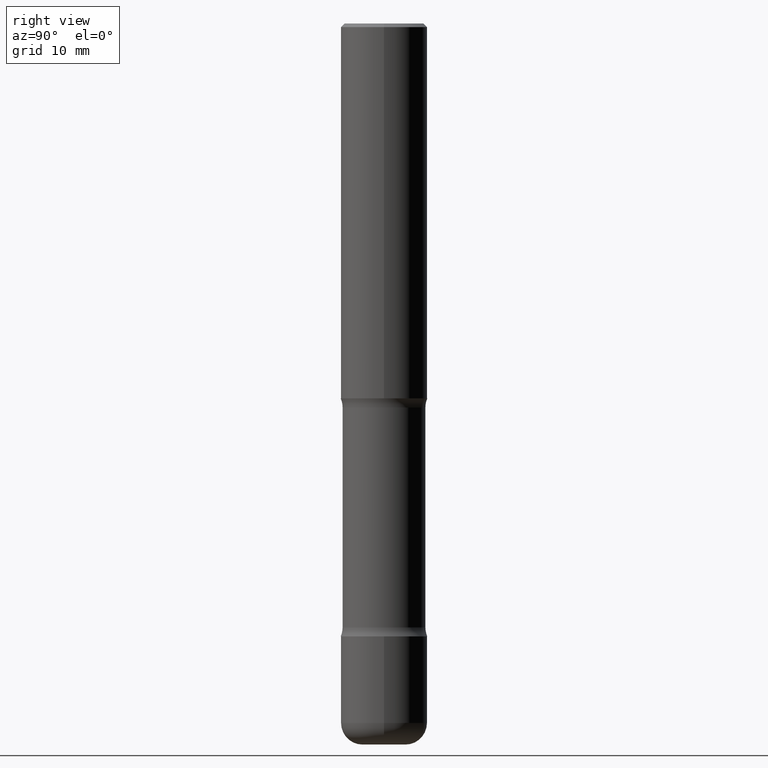
[diagram: clean part render]
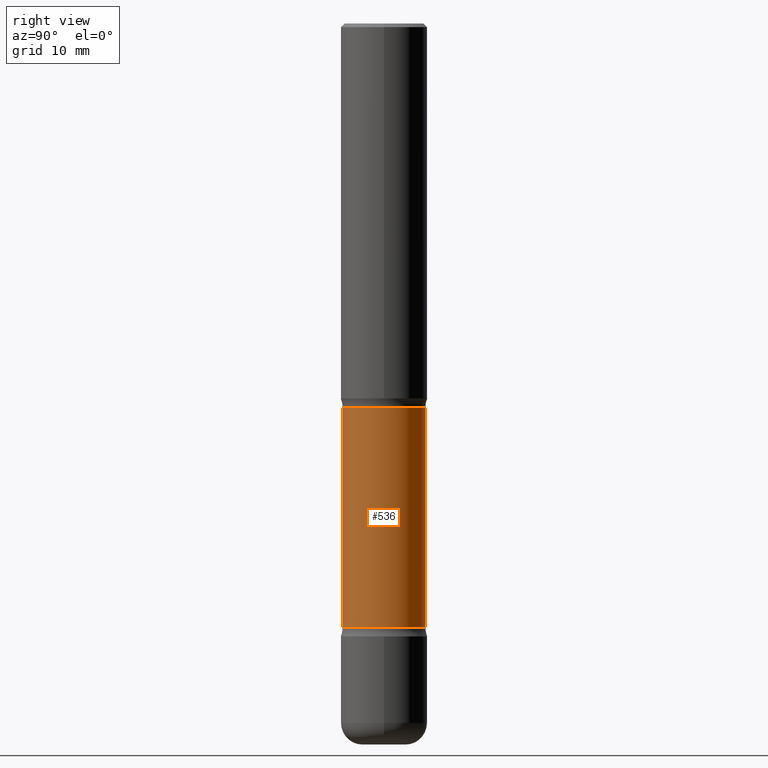
[diagram: same view with one face highlighted and labeled with its STEP entity id]
A machine part, right view. The second image highlights one B-rep face of the part: STEP entity #536.
In plain terms, the highlighted cylindrical surface (partial cylindrical patch) has radius 5.7404 mm, axis along (0, -0, -1).
Its self-contained STEP definition (entity closure, byte-faithful):
#4 = DIRECTION ( 'NONE',  ( 2.207249558311628199E-29, -3.832624860395576133E-15, -1.000000000000000000 ) ) ;
#6 = CIRCLE ( 'NONE', #261, 0.2259999999999994236 ) ;
#27 = EDGE_CURVE ( 'NONE', #496, #161, #419, .T. ) ;
#56 = DIRECTION ( 'NONE',  ( 2.207249558311628480E-29, -3.832624860395576133E-15, -1.000000000000000000 ) ) ;
#57 = CARTESIAN_POINT ( 'NONE',  ( -1.585461087284944814E-15, -0.2260000000000063070, -2.096656647682591856 ) ) ;
#69 = FACE_OUTER_BOUND ( 'NONE', #124, .T. ) ;
#73 = CARTESIAN_POINT ( 'NONE',  ( 9.487118402156788789E-29, -1.394744139485432957E-14, -3.937000000000000277 ) ) ;
#91 = CIRCLE ( 'NONE', #168, 0.2260000000000000342 ) ;
#99 = LINE ( 'NONE', #179, #500 ) ;
#109 = DIRECTION ( 'NONE',  ( 6.982962677686265133E-15, 1.000000000000000000, -4.835129192326128634E-15 ) ) ;
#124 = EDGE_LOOP ( 'NONE', ( #544, #411, #456, #186 ) ) ;
#134 = EDGE_CURVE ( 'NONE', #174, #476, #99, .T. ) ;
#161 = VERTEX_POINT ( 'NONE', #432 ) ;
#168 = AXIS2_PLACEMENT_3D ( 'NONE', #418, #493, #109 ) ;
#174 = VERTEX_POINT ( 'NONE', #57 ) ;
#179 = CARTESIAN_POINT ( 'NONE',  ( -1.550472547496269144E-15, -0.2260000000000136622, -3.936999999999998945 ) ) ;
#184 = DIRECTION ( 'NONE',  ( 2.207249558311628199E-29, -3.832624860395576133E-15, -1.000000000000000000 ) ) ;
#186 = ORIENTED_EDGE ( 'NONE', *, *, #27, .F. ) ;
#192 = EDGE_CURVE ( 'NONE', #496, #174, #6, .T. ) ;
#260 = EDGE_CURVE ( 'NONE', #161, #476, #91, .T. ) ;
#261 = AXIS2_PLACEMENT_3D ( 'NONE', #528, #56, #526 ) ;
#275 = DIRECTION ( 'NONE',  ( 6.982962677686265922E-15, 1.000000000000000000, -4.835129192326135734E-15 ) ) ;
#278 = DIRECTION ( 'NONE',  ( 2.207249558311628480E-29, -3.832624860395576133E-15, -1.000000000000000000 ) ) ;
#314 = VECTOR ( 'NONE', #4, 39.37007874015748143 ) ;
#338 = CARTESIAN_POINT ( 'NONE',  ( -1.585461087284921346E-15, -0.2260000000000115250, -3.296943352317405651 ) ) ;
#341 = CARTESIAN_POINT ( 'NONE',  ( 1.578149565157146314E-15, 0.2259999999999925124, -2.096656647682593633 ) ) ;
#384 = CARTESIAN_POINT ( 'NONE',  ( 1.578149565157189110E-15, 0.2259999999999857956, -3.937000000000001165 ) ) ;
#411 = ORIENTED_EDGE ( 'NONE', *, *, #134, .T. ) ;
#418 = CARTESIAN_POINT ( 'NONE',  ( 8.074353649264964625E-29, -1.149434437488457045E-14, -3.296943352317406983 ) ) ;
#419 = LINE ( 'NONE', #384, #314 ) ;
#432 = CARTESIAN_POINT ( 'NONE',  ( 1.578149565157176882E-15, 0.2259999999999885156, -3.296943352317407872 ) ) ;
#450 = CYLINDRICAL_SURFACE ( 'NONE', #549, 0.2259999999999997289 ) ;
#456 = ORIENTED_EDGE ( 'NONE', *, *, #260, .F. ) ;
#476 = VERTEX_POINT ( 'NONE', #338 ) ;
#493 = DIRECTION ( 'NONE',  ( 2.207249558311628480E-29, -3.832624860395576133E-15, -1.000000000000000000 ) ) ;
#496 = VERTEX_POINT ( 'NONE', #341 ) ;
#500 = VECTOR ( 'NONE', #184, 39.37007874015748143 ) ;
#526 = DIRECTION ( 'NONE',  ( 6.982962677686265922E-15, 1.000000000000000000, -3.626346894244606533E-15 ) ) ;
#528 = CARTESIAN_POINT ( 'NONE',  ( 5.425021350612449526E-29, -6.894095711098900329E-15, -2.096656647682592745 ) ) ;
#536 = ADVANCED_FACE ( 'NONE', ( #69 ), #450, .T. ) ;
#544 = ORIENTED_EDGE ( 'NONE', *, *, #192, .T. ) ;
#549 = AXIS2_PLACEMENT_3D ( 'NONE', #73, #278, #275 ) ;